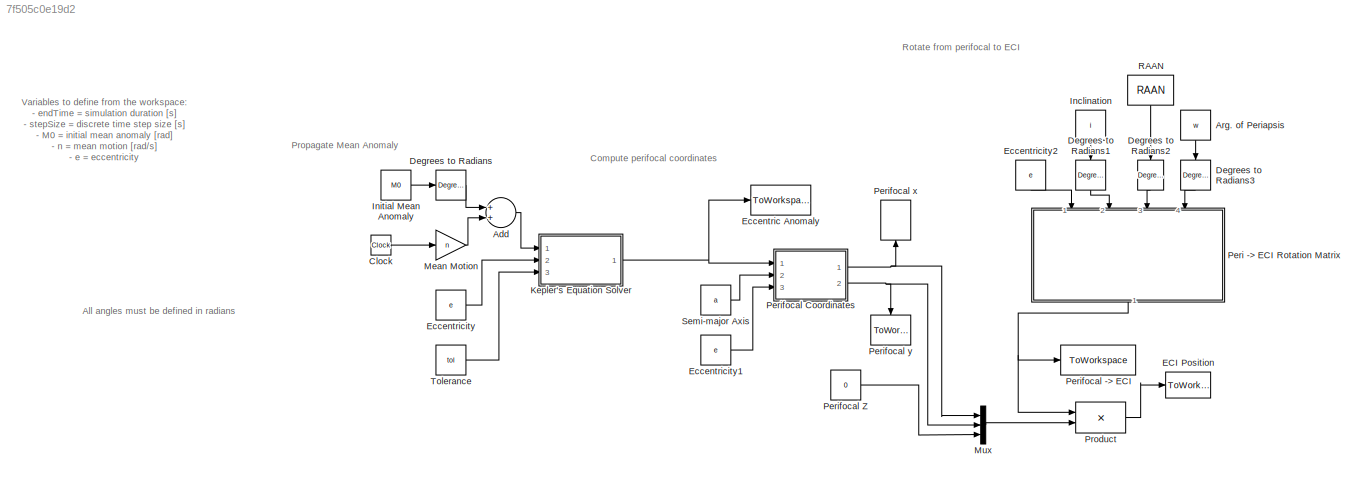
MODEL slx_7f505c0e19d2
KIND model
CONFIG AbsTol = auto
CONFIG EnableMultiTasking = on
CONFIG FixedStep = stepSize
CONFIG MaxStep = 100
CONFIG MinStep = auto
CONFIG RelTol = 1e-3
CONFIG SampleTimeConstraint = Unconstrained
CONFIG Solver = ode3
CONFIG SolverName = ode3
CONFIG StartTime = 0.0
CONFIG StopTime = stopTime
BLOCK [Sum] Add
  InputSameDT = off
  OutDataTypeStr = Inherit: Inherit via internal rule
  Ports = [2, 1]
  SaturateOnIntegerOverflow = off
BLOCK [Constant] Arg. of Periapsis
  Value = w
BLOCK [Clock] Clock
BLOCK [Reference] Degrees to Radians  REF=simulink_extras/Transformations/Degrees to
Radians
  Ports = [1, 1]
  SourceBlock = simulink_extras/Transformations/Degrees to\nRadians
  SourceProductBaseCode = SL
  SourceProductName = Simulink
  SourceType = DegreesToRadians
BLOCK [Reference] Degrees to Radians1  REF=simulink_extras/Transformations/Degrees to
Radians
  Ports = [1, 1]
  SourceBlock = simulink_extras/Transformations/Degrees to\nRadians
  SourceProductBaseCode = SL
  SourceProductName = Simulink
  SourceType = DegreesToRadians
BLOCK [Reference] Degrees to Radians2  REF=simulink_extras/Transformations/Degrees to
Radians
  Ports = [1, 1]
  SourceBlock = simulink_extras/Transformations/Degrees to\nRadians
  SourceProductBaseCode = SL
  SourceProductName = Simulink
  SourceType = DegreesToRadians
BLOCK [Reference] Degrees to Radians3  REF=simulink_extras/Transformations/Degrees to
Radians
  Ports = [1, 1]
  SourceBlock = simulink_extras/Transformations/Degrees to\nRadians
  SourceProductBaseCode = SL
  SourceProductName = Simulink
  SourceType = DegreesToRadians
BLOCK [ToWorkspace] ECI Position
  FixptAsFi = on
  MaxDataPoints = inf
  Ports = [1]
  SampleTime = -1
  Save2DSignal = 3-D array (concatenate along third dimension)
  VariableName = r_eci_L
BLOCK [ToWorkspace] Eccentric Anomaly
  FixptAsFi = on
  MaxDataPoints = inf
  Ports = [1]
  SampleTime = -1
  Save2DSignal = 3-D array (concatenate along third dimension)
  VariableName = E
BLOCK [Constant] Eccentricity
  Value = e
BLOCK [Constant] Eccentricity1
  Value = e
BLOCK [Constant] Eccentricity2
  Value = e
BLOCK [Constant] Inclination
  Value = i
BLOCK [Constant] Initial Mean Anomaly
  Value = M0
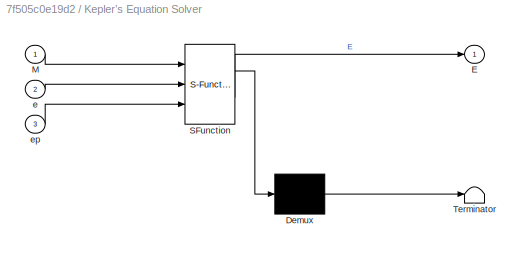
BLOCK [SubSystem] Kepler's Equation Solver
  ErrorFcn = Stateflow.Translate.translate
  PermitHierarchicalResolution = ExplicitOnly
  Ports = [3, 1]
  RequestExecContextInheritance = off
  SFBlockType = MATLAB Function
  TreatAsAtomicUnit = on
  Variant = off
BLOCK [Demux] Kepler's Equation Solver/ Demux 
  Outputs = 1
  Ports = [1, 1]
BLOCK [S-Function] Kepler's Equation Solver/ SFunction 
  EnableBusSupport = on
  FunctionName = sf_sfun
  PortCounts = [3 2]
  Ports = [3, 2]
  SFcnIsStateOwnerBlock = off
  SFunctionDeploymentMode = off
  Tag = Stateflow S-Function KeplerianPropagator_Basic 2
BLOCK [Terminator] Kepler's Equation Solver/ Terminator 
BLOCK [Outport] Kepler's Equation Solver/E
  IconDisplay = Port number
BLOCK [Inport] Kepler's Equation Solver/M
  IconDisplay = Port number
BLOCK [Inport] Kepler's Equation Solver/e
  IconDisplay = Port number
  Port = 2
BLOCK [Inport] Kepler's Equation Solver/ep
  IconDisplay = Port number
  Port = 3
BLOCK [Gain] Mean Motion
  Gain = n
  OutDataTypeStr = Inherit: Inherit via internal rule
  ParamDataTypeStr = Inherit: Inherit via internal rule
  SaturateOnIntegerOverflow = off
BLOCK [Mux] Mux
  DisplayOption = bar
  Inputs = 3
  Ports = [3, 1]
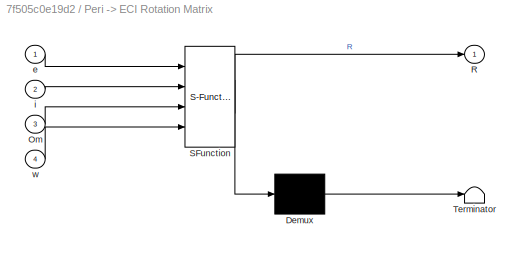
BLOCK [SubSystem] Peri -> ECI Rotation Matrix
  ErrorFcn = Stateflow.Translate.translate
  PermitHierarchicalResolution = ExplicitOnly
  Ports = [4, 1]
  RequestExecContextInheritance = off
  SFBlockType = MATLAB Function
  TreatAsAtomicUnit = on
  Variant = off
BLOCK [Demux] Peri -> ECI Rotation Matrix/ Demux 
  Outputs = 1
  Ports = [1, 1]
BLOCK [S-Function] Peri -> ECI Rotation Matrix/ SFunction 
  EnableBusSupport = on
  FunctionName = sf_sfun
  PortCounts = [4 2]
  Ports = [4, 2]
  SFcnIsStateOwnerBlock = off
  SFunctionDeploymentMode = off
  Tag = Stateflow S-Function KeplerianPropagator_Basic 7
BLOCK [Terminator] Peri -> ECI Rotation Matrix/ Terminator 
BLOCK [Inport] Peri -> ECI Rotation Matrix/Om
  IconDisplay = Port number
  Port = 3
BLOCK [Outport] Peri -> ECI Rotation Matrix/R
  IconDisplay = Port number
BLOCK [Inport] Peri -> ECI Rotation Matrix/e
  IconDisplay = Port number
BLOCK [Inport] Peri -> ECI Rotation Matrix/i
  IconDisplay = Port number
  Port = 2
BLOCK [Inport] Peri -> ECI Rotation Matrix/w
  IconDisplay = Port number
  Port = 4
BLOCK [ToWorkspace] Perifocal -> ECI
  FixptAsFi = on
  MaxDataPoints = inf
  Ports = [1]
  SampleTime = -1
  Save2DSignal = 3-D array (concatenate along third dimension)
  SaveFormat = Structure
  VariableName = rotMatrix_eci
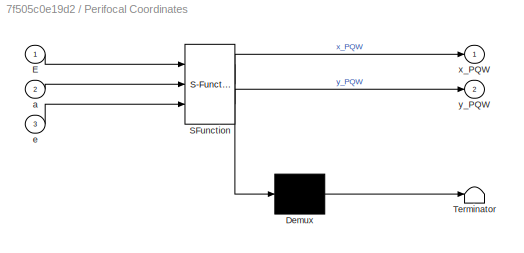
BLOCK [SubSystem] Perifocal Coordinates
  ErrorFcn = Stateflow.Translate.translate
  PermitHierarchicalResolution = ExplicitOnly
  Ports = [3, 2]
  RequestExecContextInheritance = off
  SFBlockType = MATLAB Function
  TreatAsAtomicUnit = on
  Variant = off
BLOCK [Demux] Perifocal Coordinates/ Demux 
  Outputs = 1
  Ports = [1, 1]
BLOCK [S-Function] Perifocal Coordinates/ SFunction 
  EnableBusSupport = on
  FunctionName = sf_sfun
  PortCounts = [3 3]
  Ports = [3, 3]
  SFcnIsStateOwnerBlock = off
  SFunctionDeploymentMode = off
  Tag = Stateflow S-Function KeplerianPropagator_Basic 6
BLOCK [Terminator] Perifocal Coordinates/ Terminator 
BLOCK [Inport] Perifocal Coordinates/E
  IconDisplay = Port number
BLOCK [Inport] Perifocal Coordinates/a
  IconDisplay = Port number
  Port = 2
BLOCK [Inport] Perifocal Coordinates/e
  IconDisplay = Port number
  Port = 3
BLOCK [Outport] Perifocal Coordinates/x_PQW
  IconDisplay = Port number
BLOCK [Outport] Perifocal Coordinates/y_PQW
  IconDisplay = Port number
  Port = 2
BLOCK [Constant] Perifocal Z
  Value = 0
BLOCK [ToWorkspace] Perifocal x
  FixptAsFi = on
  MaxDataPoints = inf
  Ports = [1]
  SampleTime = -1
  Save2DSignal = 3-D array (concatenate along third dimension)
  VariableName = x_peri
BLOCK [ToWorkspace] Perifocal y
  FixptAsFi = on
  MaxDataPoints = inf
  Ports = [1]
  SampleTime = -1
  Save2DSignal = 3-D array (concatenate along third dimension)
  VariableName = y_peri
BLOCK [Product] Product
  InputSameDT = off
  Multiplication = Matrix(*)
  OutDataTypeStr = Inherit: Inherit via internal rule
  Ports = [2, 1]
  RndMeth = Floor
  SaturateOnIntegerOverflow = off
BLOCK [Constant] RAAN
  Value = RAAN
BLOCK [Constant] Semi-major Axis
  Value = a
BLOCK [Constant] Tolerance
  Value = tol
ANNOTATION (root): All angles must be defined in radians
ANNOTATION (root): Variables to define from the workspace: - endTime = simulation duration [s] - stepSize = discrete time step size [s] - M0 = initial mean anomaly [rad] - n = mean motion [rad/s] - e = eccentricity - ep = Kepler's equation tolerance [rad] (usually around 1E-6) - a = semi-major axis [km] - i = inclination [rad] - Om = RAAN [rad] - w = arg. of peri. [rad]
ANNOTATION (root): Compute perifocal coordinates
ANNOTATION (root): Propagate Mean Anomaly
ANNOTATION (root): Rotate from perifocal to ECI
LINE Add:1 -> Kepler's Equation Solver:1
LINE Arg. of Periapsis:1 -> Degrees to Radians3:1
LINE Clock:1 -> Mean Motion:1
LINE Degrees to Radians1:1 -> Peri -> ECI Rotation Matrix:2
LINE Degrees to Radians2:1 -> Peri -> ECI Rotation Matrix:3
LINE Degrees to Radians3:1 -> Peri -> ECI Rotation Matrix:4
LINE Degrees to Radians:1 -> Add:1
LINE Eccentricity1:1 -> Perifocal Coordinates:3
LINE Eccentricity2:1 -> Peri -> ECI Rotation Matrix:1
LINE Eccentricity:1 -> Kepler's Equation Solver:2
LINE Inclination:1 -> Degrees to Radians1:1
LINE Initial Mean Anomaly:1 -> Degrees to Radians:1
NET Kepler's Equation Solver:1 -> Eccentric Anomaly:1, Perifocal Coordinates:1
LINE Mean Motion:1 -> Add:2
LINE Mux:1 -> Product:2
NET Peri -> ECI Rotation Matrix:1 -> Perifocal -> ECI:1, Product:1
NET Perifocal Coordinates:1 -> Mux:1, Perifocal x:1
NET Perifocal Coordinates:2 -> Mux:2, Perifocal y:1
LINE Perifocal Z:1 -> Mux:3
LINE Product:1 -> ECI Position:1
LINE RAAN:1 -> Degrees to Radians2:1
LINE Semi-major Axis:1 -> Perifocal Coordinates:2
LINE Tolerance:1 -> Kepler's Equation Solver:3
note: NET lines group one-source signal fan-out (src -> all destinations, sorted); 1:1 wires keep LINE
CHART Kepler's Equation Solver states=1 transitions=1
  STATE_LABEL 'eML_blk_kernel()'
  STATE_LABEL "SCRIPT:\nfunction E = keplerEq(M, e, ep)\n% keplersEquationSolver solves Kepler's equation for an eccentric anomaly\n% given a mean anomaly value, orbit eccentricity, and a tolerance.\n\n% Check for valid inputs\nif (e < 0) || (e >= 1)\n    error('Please provide an eccentricity corresponding to a closed orbit (0 < e < 1)');\nend\n\nif M == 0 || M == pi\n    % Return the known solutions (trivial)\n    E = M;\ne...<+668ch>"
CHART Perifocal Coordinates states=1 transitions=1
  STATE_LABEL 'eML_blk_kernel()'
  STATE_LABEL 'SCRIPT:\nfunction [x_PQW, y_PQW] = E2Pos(E, a, e)\n\n% Compute position in perifocal coordinates\n%\n% Inputs\n% ------\n% E         Eccentric anomaly\n% a         semi-major axis\n%\n% Outputs\n% -------\n% x         x position on orbital plane\n% y         y position on orbital plane\n\n% semi-latus rectum\np = a*(1 - e^2);\n\n% Compute true anomaly from eccentric anomaly\ncos_nu = (cos(E) - e) / (1 - e*cos(E));\ns...<+190ch>'
CHART Peri -> ECI
Rotation Matrix states=1 transitions=1
  STATE_LABEL 'eML_blk_kernel()'
  STATE_LABEL 'SCRIPT:\nfunction R = rotPeri2ECI(e, i, Om, w)\n\nRzOm = [ cos(-Om), sin(-Om), 0;\n        -sin(-Om), cos(-Om), 0;\n                0,        0, 1];\n            \nRxi = [1,        0,       0;\n       0,  cos(-i), sin(-i);\n       0, -sin(-i), cos(-i)];\n   \nRzw= [ cos(-w), sin(-w), 0;\n        -sin(-w), cos(-w), 0;\n               0,       0, 1];\n\nR = RzOm*Rxi*Rzw;\n\nif i == 0 && e ~= 0         % Equatorial +...<+169ch>'
